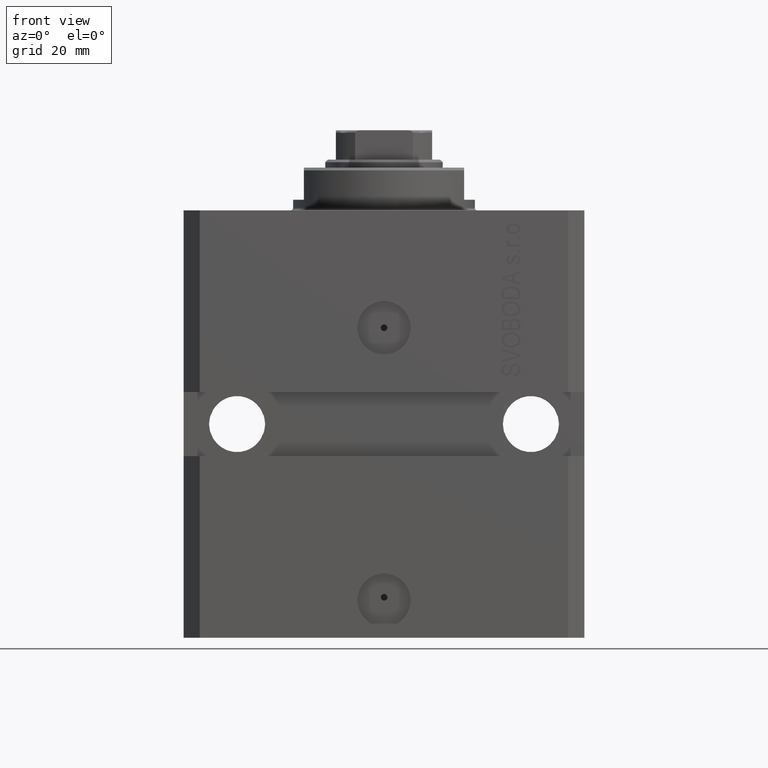
[diagram: clean part render]
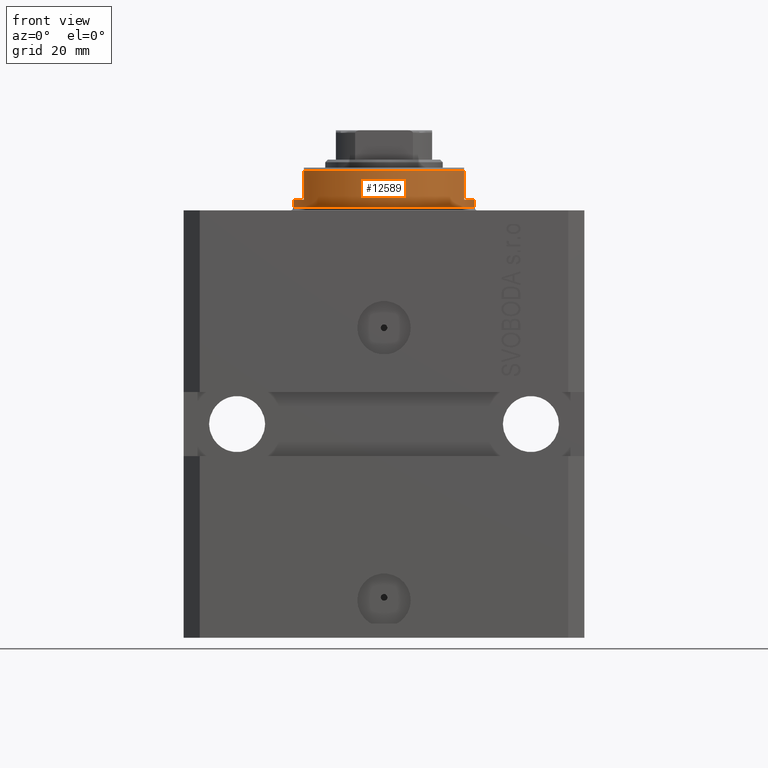
[diagram: same view with one face highlighted and labeled with its STEP entity id]
A machine part, front view. The second image highlights one B-rep face of the part: STEP entity #12589.
In plain terms, the highlighted cylindrical surface (partial cylindrical patch) has radius 17 mm, axis along (0, 0, -1).
Its self-contained STEP definition (entity closure, byte-faithful):
#285 = DIRECTION ( 'NONE',  ( -0.000000000000000000, -0.000000000000000000, 1.000000000000000000 ) ) ;
#1042 = AXIS2_PLACEMENT_3D ( 'NONE', #28665, #43745, #3271 ) ;
#1143 = DIRECTION ( 'NONE',  ( 0.000000000000000000, 0.000000000000000000, 1.000000000000000000 ) ) ;
#3271 = DIRECTION ( 'NONE',  ( -1.000000000000000000, 0.000000000000000000, 0.000000000000000000 ) ) ;
#3537 = VECTOR ( 'NONE', #29049, 1000.000000000000000 ) ;
#3633 = CYLINDRICAL_SURFACE ( 'NONE', #28292, 17.00000000000000000 ) ;
#3648 = LINE ( 'NONE', #40097, #3537 ) ;
#4545 = EDGE_CURVE ( 'NONE', #35882, #27503, #3648, .T. ) ;
#4640 = VECTOR ( 'NONE', #44566, 1000.000000000000000 ) ;
#4989 = CARTESIAN_POINT ( 'NONE',  ( 0.000000000000000000, 0.000000000000000000, -2.000000000000000000 ) ) ;
#6633 = AXIS2_PLACEMENT_3D ( 'NONE', #4989, #35177, #37836 ) ;
#6934 = VERTEX_POINT ( 'NONE', #43376 ) ;
#7239 = FACE_OUTER_BOUND ( 'NONE', #35146, .T. ) ;
#7851 = ORIENTED_EDGE ( 'NONE', *, *, #30497, .T. ) ;
#7888 = CIRCLE ( 'NONE', #27770, 17.00000000000000000 ) ;
#8582 = LINE ( 'NONE', #37377, #29249 ) ;
#11205 = CARTESIAN_POINT ( 'NONE',  ( 0.000000000000000000, 0.000000000000000000, -7.500000000000007105 ) ) ;
#11817 = CARTESIAN_POINT ( 'NONE',  ( -17.00000000000000000, 2.081899558550500280E-15, -2.000000000000000000 ) ) ;
#12589 = ADVANCED_FACE ( 'NONE', ( #7239 ), #3633, .T. ) ;
#13131 = CARTESIAN_POINT ( 'NONE',  ( 14.99999999999999645, -8.000000000000003553, -2.000000000000000000 ) ) ;
#13900 = VERTEX_POINT ( 'NONE', #41088 ) ;
#20019 = ORIENTED_EDGE ( 'NONE', *, *, #30446, .F. ) ;
#20047 = EDGE_CURVE ( 'NONE', #44000, #13900, #46038, .T. ) ;
#20066 = CARTESIAN_POINT ( 'NONE',  ( 17.00000000000000000, 0.000000000000000000, -8.000000000000000000 ) ) ;
#20198 = VERTEX_POINT ( 'NONE', #29787 ) ;
#20472 = DIRECTION ( 'NONE',  ( -0.000000000000000000, -0.000000000000000000, -1.000000000000000000 ) ) ;
#20905 = EDGE_CURVE ( 'NONE', #6934, #45567, #8582, .T. ) ;
#21278 = ORIENTED_EDGE ( 'NONE', *, *, #20905, .T. ) ;
#23015 = LINE ( 'NONE', #29966, #4640 ) ;
#23398 = EDGE_CURVE ( 'NONE', #45567, #27503, #7888, .T. ) ;
#24069 = DIRECTION ( 'NONE',  ( 1.000000000000000000, 0.000000000000000000, 0.000000000000000000 ) ) ;
#24461 = EDGE_CURVE ( 'NONE', #6934, #28959, #42351, .T. ) ;
#26135 = AXIS2_PLACEMENT_3D ( 'NONE', #35122, #20472, #24069 ) ;
#27278 = CARTESIAN_POINT ( 'NONE',  ( 15.00000000000000000, -8.000000000000001776, -7.500000000000007105 ) ) ;
#27503 = VERTEX_POINT ( 'NONE', #27278 ) ;
#27719 = LINE ( 'NONE', #20066, #33402 ) ;
#27770 = AXIS2_PLACEMENT_3D ( 'NONE', #11205, #1143, #33989 ) ;
#28292 = AXIS2_PLACEMENT_3D ( 'NONE', #43634, #285, #33342 ) ;
#28665 = CARTESIAN_POINT ( 'NONE',  ( 0.000000000000000000, 0.000000000000000000, -2.000000000000000000 ) ) ;
#28959 = VERTEX_POINT ( 'NONE', #11817 ) ;
#29049 = DIRECTION ( 'NONE',  ( 0.000000000000000000, 0.000000000000000000, -1.000000000000000000 ) ) ;
#29249 = VECTOR ( 'NONE', #37135, 1000.000000000000000 ) ;
#29787 = CARTESIAN_POINT ( 'NONE',  ( 17.00000000000000000, 0.000000000000000000, -2.000000000000000000 ) ) ;
#29966 = CARTESIAN_POINT ( 'NONE',  ( -17.00000000000000000, 2.081899558550500280E-15, -8.000000000000000000 ) ) ;
#30446 = EDGE_CURVE ( 'NONE', #20198, #35882, #37253, .T. ) ;
#30497 = EDGE_CURVE ( 'NONE', #20198, #44000, #27719, .T. ) ;
#31092 = ORIENTED_EDGE ( 'NONE', *, *, #23398, .T. ) ;
#33342 = DIRECTION ( 'NONE',  ( 1.000000000000000000, 0.000000000000000000, 0.000000000000000000 ) ) ;
#33402 = VECTOR ( 'NONE', #38300, 1000.000000000000000 ) ;
#33989 = DIRECTION ( 'NONE',  ( -1.000000000000000000, 0.000000000000000000, 0.000000000000000000 ) ) ;
#35020 = ORIENTED_EDGE ( 'NONE', *, *, #4545, .F. ) ;
#35122 = CARTESIAN_POINT ( 'NONE',  ( 0.000000000000000000, 0.000000000000000000, -0.5000000000000004441 ) ) ;
#35146 = EDGE_LOOP ( 'NONE', ( #35373, #44192, #21278, #31092, #35020, #20019, #7851, #45827 ) ) ;
#35177 = DIRECTION ( 'NONE',  ( 0.000000000000000000, 0.000000000000000000, -1.000000000000000000 ) ) ;
#35373 = ORIENTED_EDGE ( 'NONE', *, *, #38932, .F. ) ;
#35882 = VERTEX_POINT ( 'NONE', #13131 ) ;
#37135 = DIRECTION ( 'NONE',  ( 0.000000000000000000, 0.000000000000000000, -1.000000000000000000 ) ) ;
#37253 = CIRCLE ( 'NONE', #6633, 17.00000000000000000 ) ;
#37377 = CARTESIAN_POINT ( 'NONE',  ( -15.00000000000000000, -8.000000000000001776, -8.000000000000000000 ) ) ;
#37836 = DIRECTION ( 'NONE',  ( -1.000000000000000000, 0.000000000000000000, 0.000000000000000000 ) ) ;
#38300 = DIRECTION ( 'NONE',  ( -0.000000000000000000, -0.000000000000000000, 1.000000000000000000 ) ) ;
#38932 = EDGE_CURVE ( 'NONE', #28959, #13900, #23015, .T. ) ;
#39212 = CARTESIAN_POINT ( 'NONE',  ( 17.00000000000000000, 0.000000000000000000, -0.5000000000000004441 ) ) ;
#40097 = CARTESIAN_POINT ( 'NONE',  ( 15.00000000000000000, -8.000000000000001776, -8.000000000000000000 ) ) ;
#40745 = CARTESIAN_POINT ( 'NONE',  ( -15.00000000000000000, -8.000000000000001776, -7.500000000000007105 ) ) ;
#41088 = CARTESIAN_POINT ( 'NONE',  ( -17.00000000000000000, 2.081899558550500280E-15, -0.5000000000000004441 ) ) ;
#42351 = CIRCLE ( 'NONE', #1042, 17.00000000000000000 ) ;
#43376 = CARTESIAN_POINT ( 'NONE',  ( -14.99999999999999645, -8.000000000000003553, -2.000000000000000000 ) ) ;
#43634 = CARTESIAN_POINT ( 'NONE',  ( 0.000000000000000000, 0.000000000000000000, -8.000000000000000000 ) ) ;
#43745 = DIRECTION ( 'NONE',  ( 0.000000000000000000, 0.000000000000000000, -1.000000000000000000 ) ) ;
#44000 = VERTEX_POINT ( 'NONE', #39212 ) ;
#44192 = ORIENTED_EDGE ( 'NONE', *, *, #24461, .F. ) ;
#44566 = DIRECTION ( 'NONE',  ( -0.000000000000000000, -0.000000000000000000, 1.000000000000000000 ) ) ;
#45567 = VERTEX_POINT ( 'NONE', #40745 ) ;
#45827 = ORIENTED_EDGE ( 'NONE', *, *, #20047, .T. ) ;
#46038 = CIRCLE ( 'NONE', #26135, 17.00000000000000000 ) ;